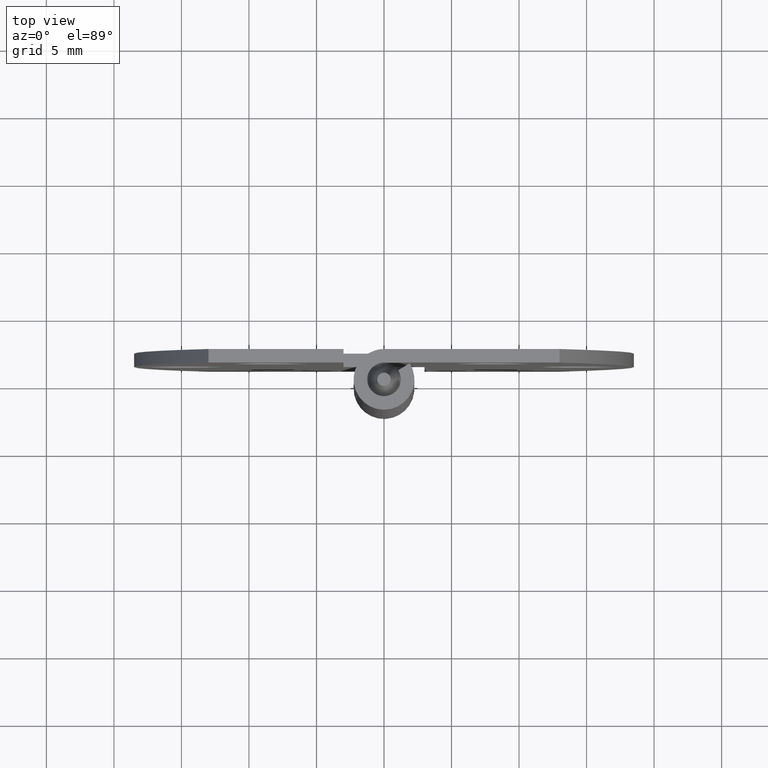
[diagram: clean part render]
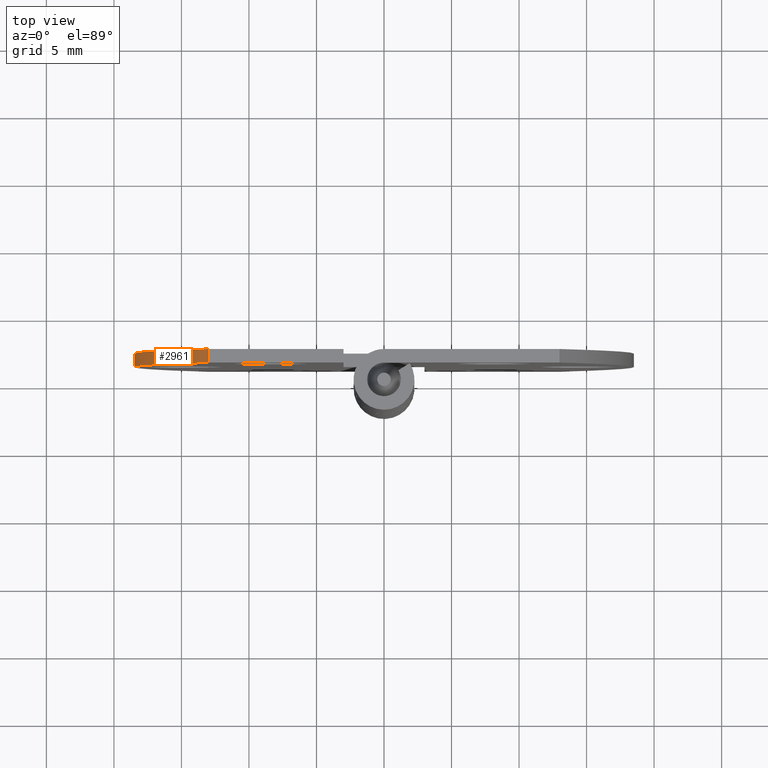
[diagram: same view with one face highlighted and labeled with its STEP entity id]
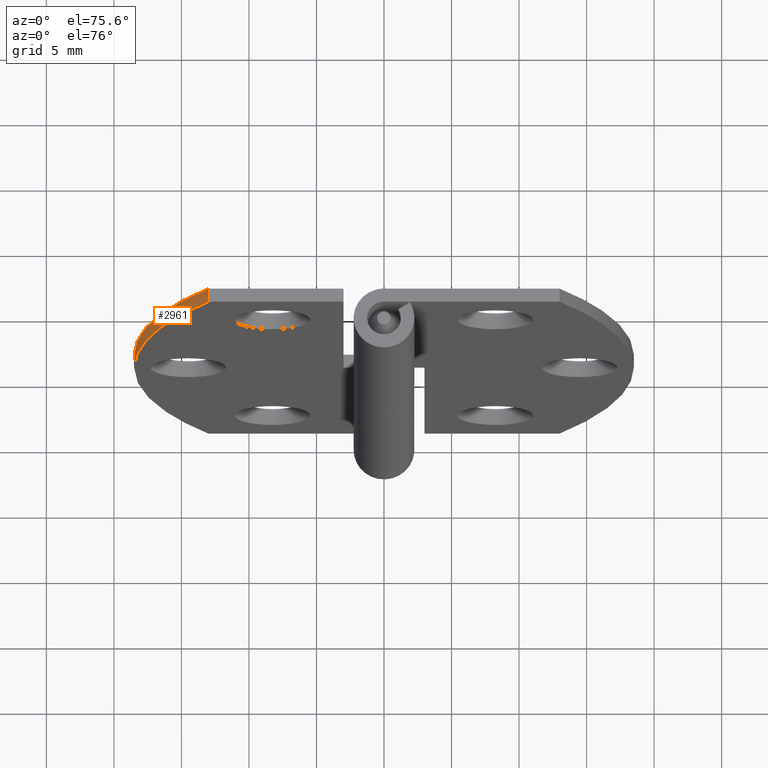
[diagram: same view with one face highlighted and labeled with its STEP entity id]
A machine part, top view. The second image highlights one B-rep face of the part: STEP entity #2961.
A second angle (auxiliary view) of the same face is appended — the face is thin or edge-on in the first view.
In plain terms, the highlighted face is a freeform B-spline surface patch.
Its self-contained STEP definition (entity closure, byte-faithful):
#2901=CARTESIAN_POINT('',(-12.474532356548931,1.224999999999972,40.140147288378273));
#2902=CARTESIAN_POINT('',(-12.474532356548931,2.275624999999975,40.140147288378273));
#2903=CARTESIAN_POINT('',(-26.036663669728437,1.224999999999972,19.074591302487420));
#2904=CARTESIAN_POINT('',(-26.036663669728437,2.275624999999975,19.074591302487420));
#2905=CARTESIAN_POINT('',(-11.944864016760150,1.224999999999972,-1.640384857074738));
#2906=CARTESIAN_POINT('',(-11.944864016760150,2.275624999999975,-1.640384857074738));
#2914=(BOUNDED_SURFACE()B_SPLINE_SURFACE(1,2,((#2901,#2903,#2905),(#2902,#2904,#2906)),.UNSPECIFIED.,.F.,.F.,.U.)B_SPLINE_SURFACE_WITH_KNOTS((2,2),(3,3),(0.0,1.0),(0.0,45.568692352985842),.UNSPECIFIED.)GEOMETRIC_REPRESENTATION_ITEM()RATIONAL_B_SPLINE_SURFACE(((1.0,0.833885822067168,1.0),(1.0,0.833885822067168,1.0)))REPRESENTATION_ITEM('')SURFACE());
#2915=CARTESIAN_POINT('',(-12.999995655354020,2.249999999999975,39.300003000000103));
#2916=VERTEX_POINT('',#2915);
#2917=CARTESIAN_POINT('',(-12.999995047973600,2.249999999999975,0.0));
#2918=VERTEX_POINT('',#2917);
#2919=CARTESIAN_POINT('',(-12.999995655354031,2.249999999999975,39.300003000000103));
#2920=CARTESIAN_POINT('',(-24.935022729928775,2.249999999999974,19.650001315544539));
#2921=CARTESIAN_POINT('',(-12.999995047973609,2.249999999999975,-3.469447E-015));
#2929=(BOUNDED_CURVE()B_SPLINE_CURVE(2,(#2919,#2920,#2921),.UNSPECIFIED.,.F.,.U.)CURVE()GEOMETRIC_REPRESENTATION_ITEM()QUASI_UNIFORM_CURVE()RATIONAL_B_SPLINE_CURVE((1.0,0.854697405180328,1.0))REPRESENTATION_ITEM(''));
#2930=EDGE_CURVE('',#2916,#2918,#2929,.T.);
#2931=ORIENTED_EDGE('',*,*,#2930,.T.);
#2932=CARTESIAN_POINT('',(-12.999995047973600,1.249999999999972,0.0));
#2933=VERTEX_POINT('',#2932);
#2934=CARTESIAN_POINT('',(-12.999995047973600,1.249999999999972,0.0));
#2935=CARTESIAN_POINT('',(-12.999995047973600,2.249999999999975,0.0));
#2936=QUASI_UNIFORM_CURVE('',1,(#2934,#2935),.UNSPECIFIED.,.F.,.U.);
#2937=EDGE_CURVE('',#2933,#2918,#2936,.T.);
#2938=ORIENTED_EDGE('',*,*,#2937,.F.);
#2939=CARTESIAN_POINT('',(-12.999995655354020,1.250000000000000,39.300003000000103));
#2940=VERTEX_POINT('',#2939);
#2941=CARTESIAN_POINT('',(-12.999995655354031,1.249999999999972,39.300003000000103));
#2942=CARTESIAN_POINT('',(-24.935022729928775,1.249999999999972,19.650001315544539));
#2943=CARTESIAN_POINT('',(-12.999995047973609,1.249999999999972,-3.469447E-015));
#2951=(BOUNDED_CURVE()B_SPLINE_CURVE(2,(#2941,#2942,#2943),.UNSPECIFIED.,.F.,.U.)CURVE()GEOMETRIC_REPRESENTATION_ITEM()QUASI_UNIFORM_CURVE()RATIONAL_B_SPLINE_CURVE((1.0,0.854697405180328,1.0))REPRESENTATION_ITEM(''));
#2952=EDGE_CURVE('',#2940,#2933,#2951,.T.);
#2953=ORIENTED_EDGE('',*,*,#2952,.F.);
#2954=CARTESIAN_POINT('',(-12.999995655354020,1.250000000000000,39.300003000000103));
#2955=CARTESIAN_POINT('',(-12.999995655354020,2.249999999999975,39.300003000000103));
#2956=QUASI_UNIFORM_CURVE('',1,(#2954,#2955),.UNSPECIFIED.,.F.,.U.);
#2957=EDGE_CURVE('',#2940,#2916,#2956,.T.);
#2958=ORIENTED_EDGE('',*,*,#2957,.T.);
#2959=EDGE_LOOP('',(#2931,#2938,#2953,#2958));
#2960=FACE_OUTER_BOUND('',#2959,.T.);
#2961=ADVANCED_FACE('',(#2960),#2914,.T.);